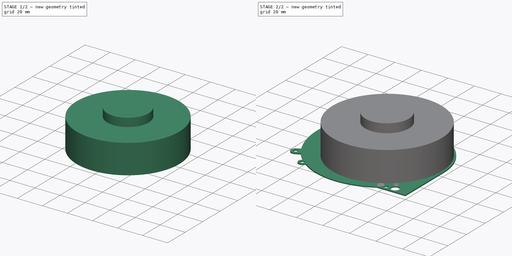
[diagram: build sequence overview — one tinted view per stage of 2, left to right]
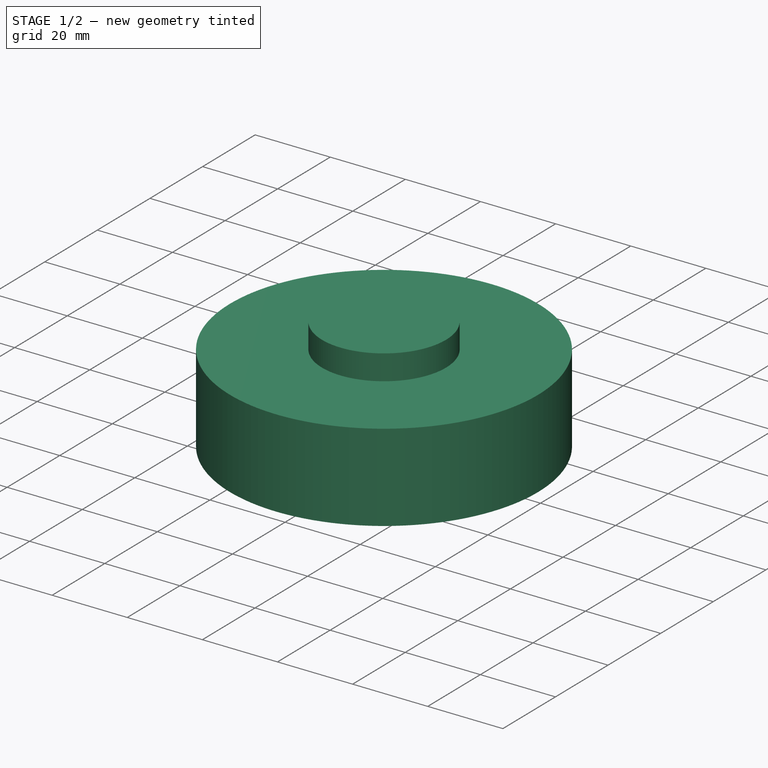
[diagram: stage 1 of 2 — iso view after this stage's code; geometry added in this stage tinted green]
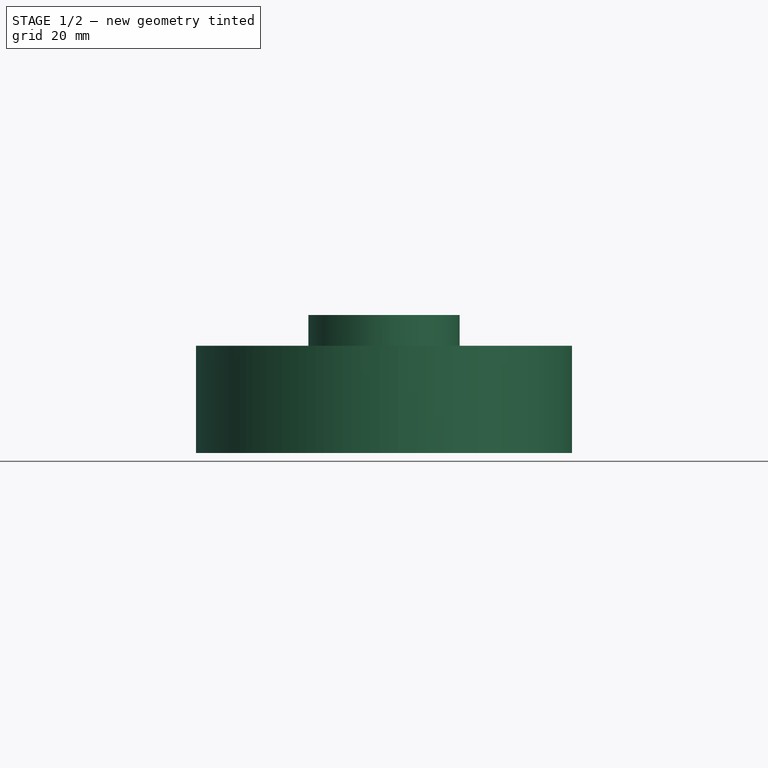
[diagram: stage 1 of 2 — front view after this stage's code; geometry added in this stage tinted green]
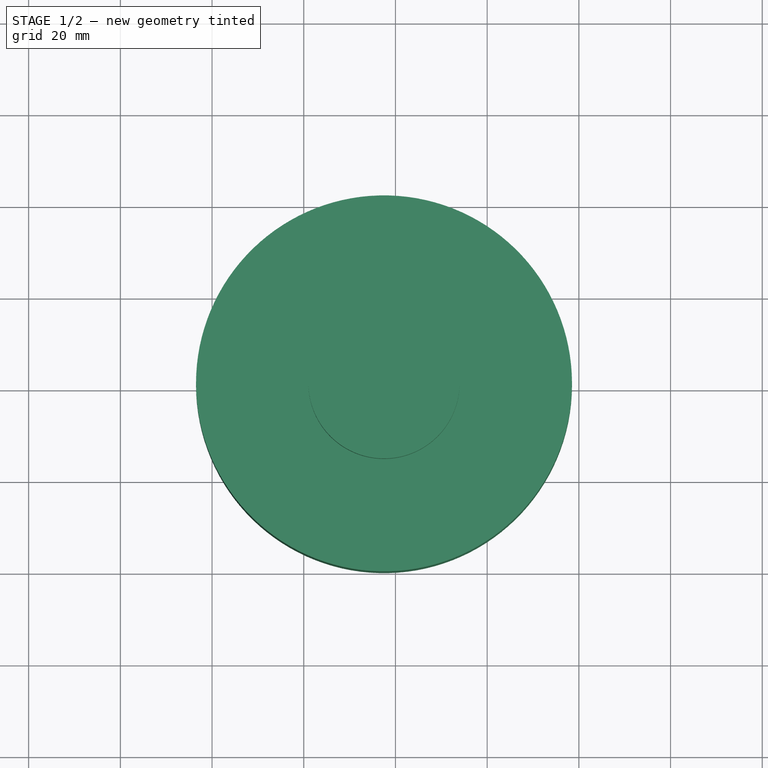
[diagram: stage 1 of 2 — top view after this stage's code; geometry added in this stage tinted green]
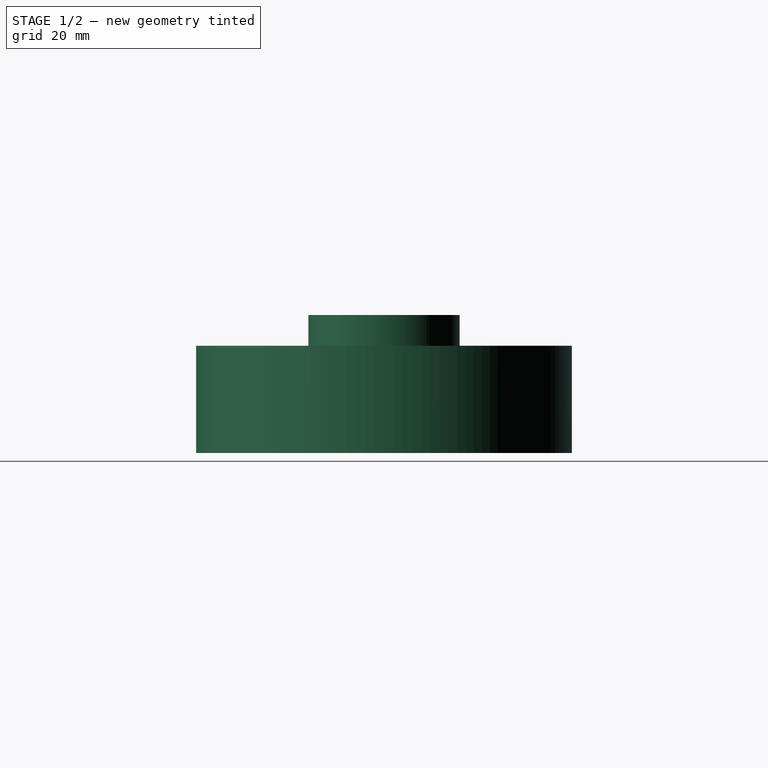
[diagram: stage 1 of 2 — right view after this stage's code; geometry added in this stage tinted green]
FCSTD DOCUMENT  (FreeCAD 0.19R24291 (Git))
Label: ps4_fan_KSB0912HE_DC12V
License: All rights reserved
LicenseURL: http://en.wikipedia.org/wiki/All_rights_reserved
objects: Sketcher::SketchObject×3, PartDesign::Pad×3, PartDesign::Body×2, PartDesign::CoordinateSystem×1
note: 12 computed .brp shape members not serialized (recipe doc carries the construction recipe); baked Part::Feature solids carry a one-line shape summary decoded from their .brp

FEATURE [PartDesign::Body] Body  label="Mounting_Plate"
  Group = -> [Sketch,LCS_1,Pad]
  Origin = -> Origin
  Tip = -> Pad
FEATURE [Sketcher::SketchObject] Sketch001
  FullyConstrained = true
  MapMode = 5
  Support = -> [XY_Plane001]
  sketch-geometry (5):
    g0: Circle CenterX=-42.5 CenterY=41.2 CenterZ=0 NormalX=0 NormalY=0 NormalZ=1 AngleXU=0 Radius=41
    g1: LineSegment StartX=0 StartY=0 StartZ=0 EndX=-42.5 EndY=0 EndZ=0
    g2: LineSegment StartX=-42.5 StartY=0 StartZ=0 EndX=-42.5 EndY=41.2 EndZ=0
    g3: LineSegment StartX=-42.5 StartY=41.2 StartZ=0 EndX=0 EndY=41.2 EndZ=0
    g4: LineSegment StartX=0 StartY=41.2 StartZ=0 EndX=0 EndY=0 EndZ=0
  constraints (13):
    c: Radius(g0) = 41
    c: Coincident(g1,g2)
    c: Coincident(g2,g3)
    c: Coincident(g3,g4)
    c: Coincident(g4,g1)
    c: Horizontal(g1)
    c: Horizontal(g3)
    c: Vertical(g2)
    c: Vertical(g4)
    c: Coincident(g1,g-1)
    c: Coincident(g2,g0)
    c: Distance(g3) = 42.5
    c: Distance(g2) = 41.2
FEATURE [PartDesign::Pad] Pad001
  Direction = (1,1,1)
  Length = 23.4
  Length2 = 100
  Profile = -> Sketch001
  Type = 0
FEATURE [Sketcher::SketchObject] Sketch002
  FullyConstrained = true
  MapMode = 5
  Placement = pos=(0,0,23.4) rot=(0,0,1;0rad)
  Support = -> [Pad001]
  sketch-geometry (5):
    g0: LineSegment StartX=0 StartY=0 StartZ=0 EndX=-42.5 EndY=0 EndZ=0
    g1: LineSegment StartX=-42.5 StartY=0 StartZ=0 EndX=-42.5 EndY=41.2 EndZ=0
    g2: LineSegment StartX=-42.5 StartY=41.2 StartZ=0 EndX=0 EndY=41.2 EndZ=0
    g3: LineSegment StartX=0 StartY=41.2 StartZ=0 EndX=0 EndY=0 EndZ=0
    g4: Circle CenterX=-42.5 CenterY=41.2 CenterZ=0 NormalX=0 NormalY=0 NormalZ=1 AngleXU=0 Radius=16.5
  constraints (13):
    c: Coincident(g0,g1)
    c: Coincident(g1,g2)
    c: Coincident(g2,g3)
    c: Coincident(g3,g0)
    c: Horizontal(g0)
    c: Horizontal(g2)
    c: Vertical(g1)
    c: Vertical(g3)
    c: Coincident(g0,g-1)
    c: Distance(g1) = 41.2
    c: Coincident(g4,g1)
    c: Distance(g2) = 42.5
    c: Radius(g4) = 16.5
FEATURE [PartDesign::Pad] Pad002
  BaseFeature = -> Pad001
  Direction = (1,1,1)
  Length = 6.7
  Length2 = 100
  Profile = -> Sketch002
  Type = 0
FEATURE [PartDesign::Body] Body001  label="Fan"
  Group = -> [Sketch001,Pad001,Sketch002,Pad002]
  Origin = -> Origin001
  Placement = pos=(0,0,0.8) rot=(0,0,1;0rad)
  Tip = -> Pad002
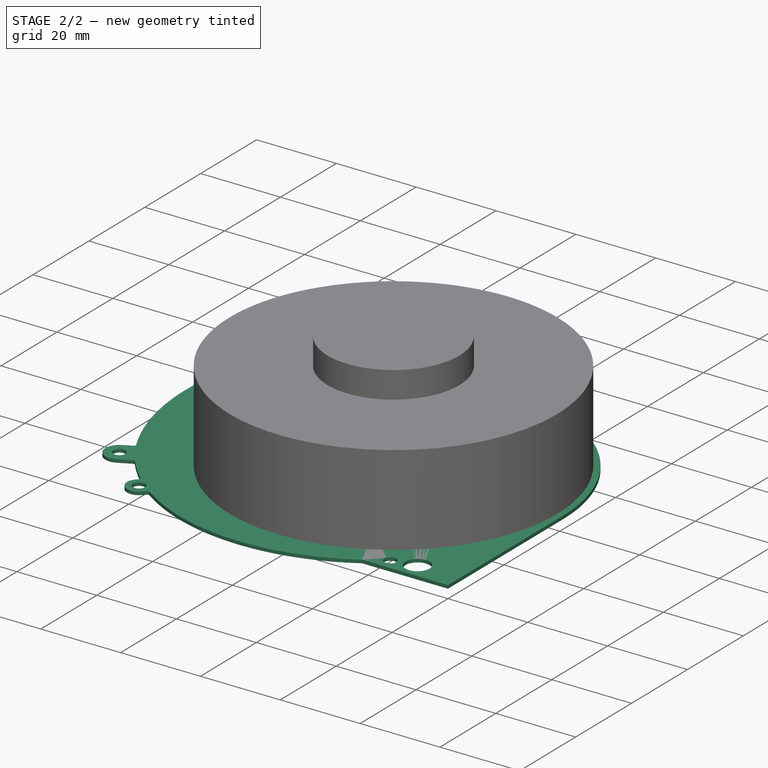
[diagram: stage 2 of 2 — iso view after this stage's code; geometry added in this stage tinted green]
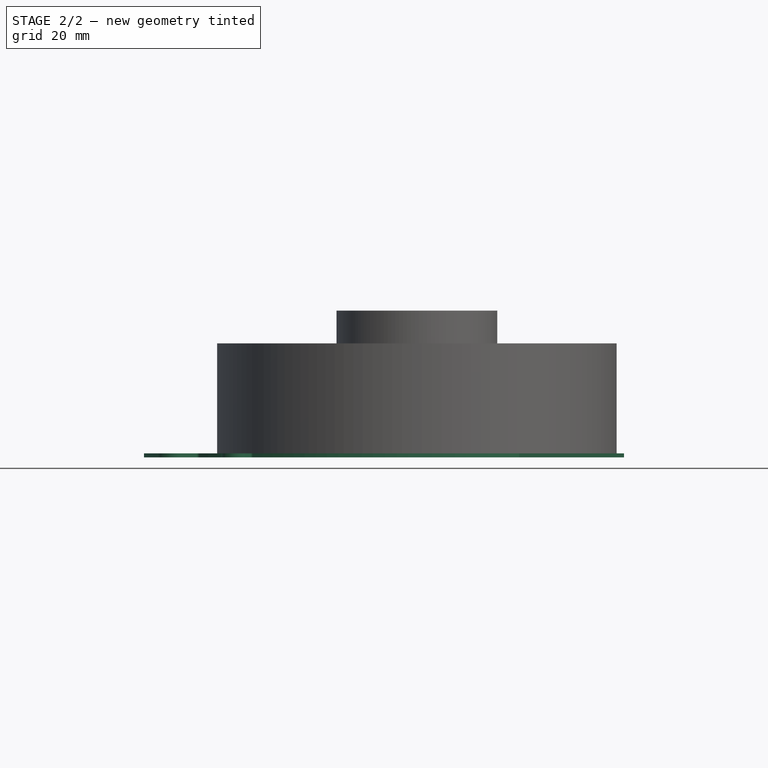
[diagram: stage 2 of 2 — front view after this stage's code; geometry added in this stage tinted green]
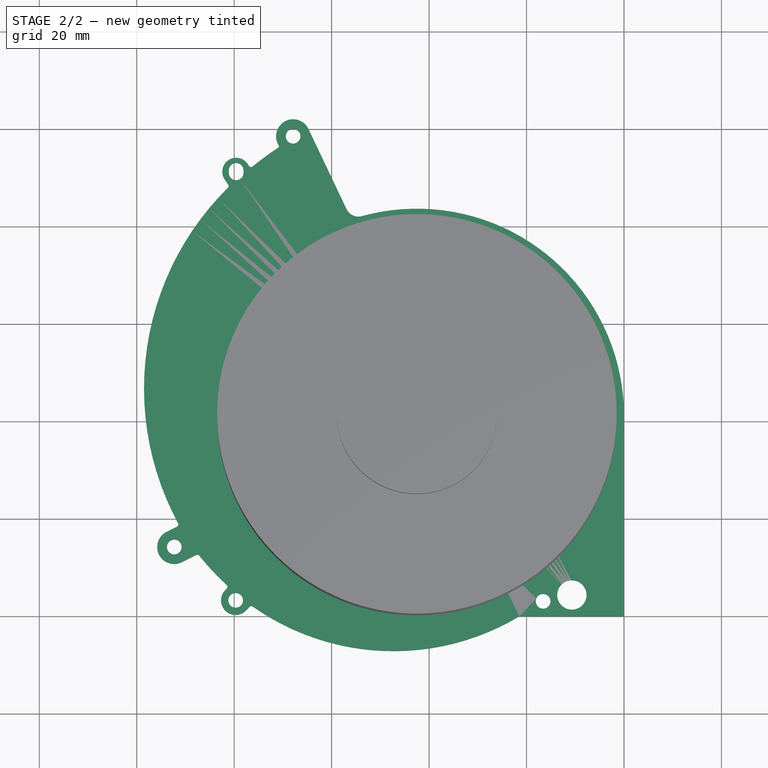
[diagram: stage 2 of 2 — top view after this stage's code; geometry added in this stage tinted green]
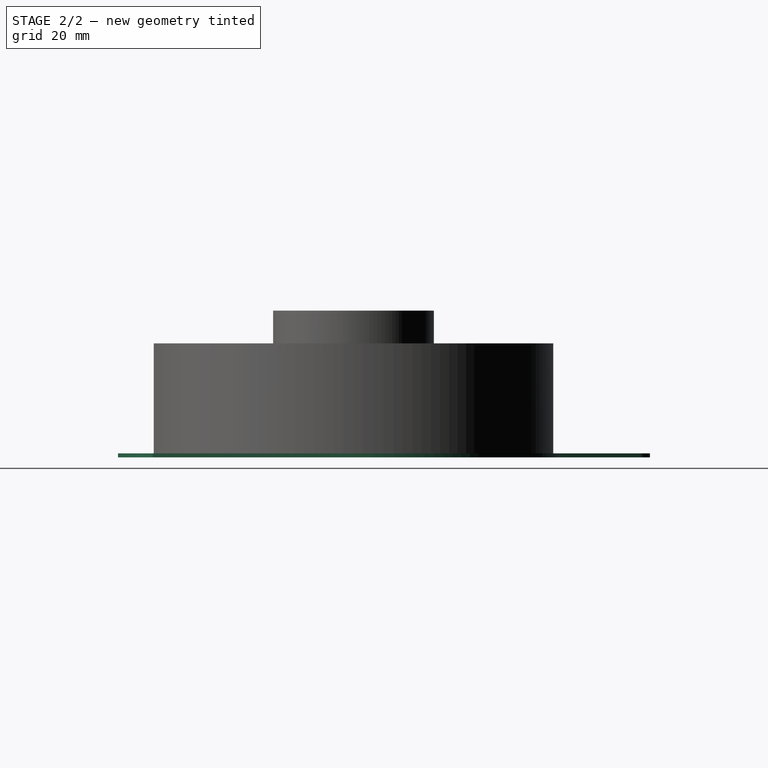
[diagram: stage 2 of 2 — right view after this stage's code; geometry added in this stage tinted green]
FEATURE [Sketcher::SketchObject] Sketch
  FullyConstrained = true
  MapMode = 5
  Support = -> [XY_Plane]
  sketch-geometry (124):
    g0: LineSegment StartX=-21.5 StartY=-7.1e-15 StartZ=0 EndX=0 EndY=-7.1e-15 EndZ=0
    g1: LineSegment StartX=0 StartY=-7.1e-15 StartZ=0 EndX=0 EndY=41.2 EndZ=0
    g2: GeomPoint X=-42.5 Y=41.2 Z=0
    g3: LineSegment StartX=0 StartY=-7.1e-15 StartZ=0 EndX=-42.5 EndY=-7.1e-15 EndZ=0
    g4: LineSegment StartX=-42.5 StartY=-7.1e-15 StartZ=0 EndX=-42.5 EndY=41.2 EndZ=0
    g5: LineSegment StartX=-42.5 StartY=41.2 StartZ=0 EndX=0 EndY=41.2 EndZ=0
    g6: LineSegment StartX=0 StartY=41.2 StartZ=0 EndX=0 EndY=-7.1e-15 EndZ=0
    g7: ArcOfCircle CenterX=-42.5 CenterY=41.2 CenterZ=0 NormalX=0 NormalY=0 NormalZ=1 AngleXU=0 Radius=42.5 StartAngle=0 EndAngle=1.83958
    g8: ArcOfCircle CenterX=-54.5031 CenterY=84.7771 CenterZ=0 NormalX=0 NormalY=0 NormalZ=1 AngleXU=0 Radius=2.7 StartAngle=3.58491 EndAngle=4.98117
    g9: LineSegment StartX=-56.9421 StartY=83.619 StartZ=0 EndX=-64.7488 EndY=100.06 EndZ=0
    g10: Circle CenterX=-67.9104 CenterY=98.5584 CenterZ=0 NormalX=0 NormalY=0 NormalZ=1 AngleXU=0 Radius=1.5
    g11: ArcOfCircle CenterX=-67.9104 CenterY=98.5584 CenterZ=0 NormalX=0 NormalY=0 NormalZ=1 AngleXU=0 Radius=3.5 StartAngle=0.443314 EndAngle=3.58491
    g12: ArcOfCircle CenterX=-71.1286 CenterY=96.4768 CenterZ=0 NormalX=0 NormalY=0 NormalZ=1 AngleXU=0 Radius=0.3 StartAngle=5.1557 EndAngle=6.7265
    g13: ArcOfCircle CenterX=-76.5566 CenterY=92.6894 CenterZ=0 NormalX=0 NormalY=0 NormalZ=1 AngleXU=0 Radius=0.45 StartAngle=3.735 EndAngle=5.3058
    g14: LineSegment StartX=-76.9297 StartY=92.4377 StartZ=0 EndX=-77.2372 EndY=92.8937 EndZ=0
    g15: ArcOfCircle CenterX=-79.6 CenterY=91.55 CenterZ=0 NormalX=0 NormalY=0 NormalZ=1 AngleXU=0 Radius=1.5 StartAngle=1.4e-15 EndAngle=3.14159
    g16: ArcOfCircle CenterX=-79.6 CenterY=91.05 CenterZ=0 NormalX=0 NormalY=0 NormalZ=1 AngleXU=0 Radius=1.5 StartAngle=3.14159 EndAngle=6.28319
    g17: LineSegment StartX=-78.1 StartY=91.05 StartZ=0 EndX=-78.1 EndY=91.55 EndZ=0
    g18: LineSegment StartX=-81.1 StartY=91.05 StartZ=0 EndX=-81.1 EndY=91.55 EndZ=0
    g19: LineSegment StartX=-79.6 StartY=91.05 StartZ=0 EndX=-79.6 EndY=91.3 EndZ=0
    g20: LineSegment StartX=-79.6 StartY=91.3 StartZ=0 EndX=-79.6 EndY=91.55 EndZ=0
    g21: ArcOfCircle CenterX=-79.6 CenterY=91.3 CenterZ=0 NormalX=0 NormalY=0 NormalZ=1 AngleXU=0 Radius=2.85 StartAngle=0.593412 EndAngle=3.735
    g22: LineSegment StartX=-81.9628 StartY=89.7063 StartZ=0 EndX=-81.2078 EndY=88.5871 EndZ=0
    g23: ArcOfCircle CenterX=-81.5809 CenterY=88.3355 CenterZ=0 NormalX=0 NormalY=0 NormalZ=1 AngleXU=0 Radius=0.45 StartAngle=5.3058 EndAngle=6.8766
    g24: LineSegment StartX=-81.5809 StartY=88.3355 StartZ=0 EndX=-81.2078 EndY=88.5871 EndZ=0
    g25: LineSegment StartX=-81.5809 StartY=88.3355 StartZ=0 EndX=-81.3293 EndY=87.9624 EndZ=0
    g26: LineSegment StartX=-76.5566 StartY=92.6894 StartZ=0 EndX=-76.9297 EndY=92.4377 EndZ=0
    g27: LineSegment StartX=-76.5566 StartY=92.6894 StartZ=0 EndX=-76.305 EndY=92.3163 EndZ=0
    g28: LineSegment StartX=-81.1 StartY=91.55 StartZ=0 EndX=-79.6 EndY=91.55 EndZ=0
    g29: LineSegment StartX=-79.6 StartY=91.55 StartZ=0 EndX=-78.1 EndY=91.55 EndZ=0
    g30: LineSegment StartX=-81.1 StartY=91.05 StartZ=0 EndX=-79.6 EndY=91.05 EndZ=0
    g31: LineSegment StartX=-79.6 StartY=91.05 StartZ=0 EndX=-78.1 EndY=91.05 EndZ=0
    g32: LineSegment StartX=-81.9628 StartY=89.7063 StartZ=0 EndX=-79.6 EndY=91.3 EndZ=0
    g33: LineSegment StartX=-79.6 StartY=91.3 StartZ=0 EndX=-77.2372 EndY=92.8937 EndZ=0
    g34: LineSegment StartX=-71 StartY=96.2058 StartZ=0 EndX=-71.1286 EndY=96.4768 EndZ=0
    g35: LineSegment StartX=-71.1286 StartY=96.4768 StartZ=0 EndX=-70.8576 EndY=96.6055 EndZ=0
    g36: LineSegment StartX=-71.0721 StartY=97.0571 StartZ=0 EndX=-67.9104 EndY=98.5584 EndZ=0
    g37: LineSegment StartX=-67.9104 StartY=98.5584 StartZ=0 EndX=-64.7488 EndY=100.06 EndZ=0
    g38: LineSegment StartX=-70.8576 StartY=96.6055 StartZ=0 EndX=-71.0721 EndY=97.0571 EndZ=0
    g39: LineSegment StartX=-56.9421 StartY=83.619 StartZ=0 EndX=-54.5031 EndY=84.7771 EndZ=0
    g40: LineSegment StartX=-54.5031 StartY=84.7771 StartZ=0 EndX=-53.7861 EndY=82.1741 EndZ=0
    g41: LineSegment StartX=0 StartY=-7.1e-15 StartZ=0 EndX=-79.6 EndY=-7.1e-15 EndZ=0
    g42: LineSegment StartX=-79.6 StartY=-7.1e-15 StartZ=0 EndX=-79.6 EndY=91.3 EndZ=0
    g43: LineSegment StartX=-79.6 StartY=91.3 StartZ=0 EndX=0 EndY=91.3 EndZ=0
    g44: LineSegment StartX=0 StartY=91.3 StartZ=0 EndX=0 EndY=-1.42e-14 EndZ=0
    g45: ArcOfCircle CenterX=-32 CenterY=37.4498 CenterZ=0 NormalX=0 NormalY=0 NormalZ=1 AngleXU=0 Radius=70.5214 StartAngle=2.15678 EndAngle=2.2501
    g46: LineSegment StartX=-32 StartY=0 StartZ=0 EndX=-32 EndY=37.4498 EndZ=0
    g47: LineSegment StartX=-32 StartY=37.4498 StartZ=0 EndX=0 EndY=37.4498 EndZ=0
    g48: LineSegment StartX=0 StartY=37.4498 StartZ=0 EndX=0 EndY=-7.1e-15 EndZ=0
    g49: ArcOfCircle CenterX=-91.9532 CenterY=18.9019 CenterZ=0 NormalX=0 NormalY=0 NormalZ=1 AngleXU=0 Radius=0.5 StartAngle=5.17839 EndAngle=6.74919
    g50: ArcOfCircle CenterX=-87.5546 CenterY=12.1593 CenterZ=0 NormalX=0 NormalY=0 NormalZ=1 AngleXU=0 Radius=0.5 StartAngle=0.466003 EndAngle=2.0368
    g51: Circle CenterX=-92.3 CenterY=14.25 CenterZ=0 NormalX=0 NormalY=0 NormalZ=1 AngleXU=0 Radius=1.5
    g52: ArcOfCircle CenterX=-92.3 CenterY=14.25 CenterZ=0 NormalX=0 NormalY=0 NormalZ=1 AngleXU=0 Radius=3.5 StartAngle=2.0368 EndAngle=5.17839
    g53: LineSegment StartX=-90.7274 StartY=11.1232 StartZ=0 EndX=-92.3 EndY=14.25 EndZ=0
    g54: LineSegment StartX=-92.3 StartY=14.25 StartZ=0 EndX=-93.8726 EndY=17.3768 EndZ=0
    g55: LineSegment StartX=-90.7274 StartY=11.1232 StartZ=0 EndX=-87.7793 EndY=12.606 EndZ=0
    g56: LineSegment StartX=-93.8726 StartY=17.3768 StartZ=0 EndX=-91.7285 EndY=18.4552 EndZ=0
    g57: LineSegment StartX=-91.9532 StartY=18.9019 StartZ=0 EndX=-91.7285 EndY=18.4552 EndZ=0
    g58: LineSegment StartX=-87.5546 StartY=12.1593 StartZ=0 EndX=-87.7793 EndY=12.606 EndZ=0
    g59: LineSegment StartX=0 StartY=-7.1e-15 StartZ=0 EndX=-92.3 EndY=-7.1e-15 EndZ=0
    g60: LineSegment StartX=-92.3 StartY=-7.1e-15 StartZ=0 EndX=-92.3 EndY=14.25 EndZ=0
    g61: LineSegment StartX=-92.3 StartY=14.25 StartZ=0 EndX=0 EndY=14.25 EndZ=0
    g62: LineSegment StartX=0 StartY=14.25 StartZ=0 EndX=0 EndY=-7.1e-15 EndZ=0
    g63: ArcOfCircle CenterX=-40.5 CenterY=46.7556 CenterZ=0 NormalX=0 NormalY=0 NormalZ=1 AngleXU=0 Radius=58.0089 StartAngle=2.35159 EndAngle=3.63802
    g64: LineSegment StartX=0 StartY=-7.1e-15 StartZ=0 EndX=-40.5 EndY=-7.1e-15 EndZ=0
    g65: LineSegment StartX=-40.5 StartY=-7.1e-15 StartZ=0 EndX=-40.5 EndY=46.7556 EndZ=0
    g66: LineSegment StartX=-40.5 StartY=46.7556 StartZ=0 EndX=0 EndY=46.7556 EndZ=0
    g67: LineSegment StartX=0 StartY=46.7556 StartZ=0 EndX=0 EndY=-7.1e-15 EndZ=0
    g68: Circle CenterX=-79.7 CenterY=3.3 CenterZ=0 NormalX=0 NormalY=0 NormalZ=1 AngleXU=0 Radius=1.5
    g69: LineSegment StartX=0 StartY=-7.1e-15 StartZ=0 EndX=-79.7 EndY=-7.1e-15 EndZ=0
    g70: LineSegment StartX=-79.7 StartY=-7.1e-15 StartZ=0 EndX=-79.7 EndY=3.3 EndZ=0
    g71: LineSegment StartX=-79.7 StartY=3.3 StartZ=0 EndX=0 EndY=3.3 EndZ=0
    g72: LineSegment StartX=0 StartY=3.3 StartZ=0 EndX=0 EndY=-7.1e-15 EndZ=0
    g73: ArcOfCircle CenterX=-76.4728 CenterY=1.61613 CenterZ=0 NormalX=0 NormalY=0 NormalZ=1 AngleXU=0 Radius=0.5 StartAngle=0.811578 EndAngle=2.38237
    g74: LineSegment StartX=-76.8355 StartY=1.96031 StartZ=0 EndX=-77.5239 EndY=1.23494 EndZ=0
    g75: LineSegment StartX=-76.4728 StartY=1.61613 StartZ=0 EndX=-76.8355 EndY=1.96031 EndZ=0
    g76: ArcOfCircle CenterX=-79.7 CenterY=3.3 CenterZ=0 NormalX=0 NormalY=0 NormalZ=1 AngleXU=0 Radius=3 StartAngle=2.38237 EndAngle=5.52397
    g77: LineSegment StartX=-77.5239 StartY=1.23494 StartZ=0 EndX=-79.7 EndY=3.3 EndZ=0
    g78: LineSegment StartX=-79.7 StartY=3.3 StartZ=0 EndX=-81.8761 EndY=5.36506 EndZ=0
    g79: LineSegment StartX=-81.8761 StartY=5.36506 StartZ=0 EndX=-81.5319 EndY=5.72775 EndZ=0
    g80: ArcOfCircle CenterX=-81.8946 CenterY=6.07193 CenterZ=0 NormalX=0 NormalY=0 NormalZ=1 AngleXU=0 Radius=0.5 StartAngle=5.52397 EndAngle=7.09476
    g81: LineSegment StartX=-81.5319 StartY=5.72775 StartZ=0 EndX=-81.8946 EndY=6.07193 EndZ=0
    g82: ArcOfCircle CenterX=-42.5 CenterY=48.4834 CenterZ=0 NormalX=0 NormalY=0 NormalZ=1 AngleXU=0 Radius=57.385 StartAngle=3.82195 EndAngle=3.96394
    g83: LineSegment StartX=0 StartY=-7.1e-15 StartZ=0 EndX=-42.5 EndY=-7.1e-15 EndZ=0
    g84: LineSegment StartX=-42.5 StartY=-7.1e-15 StartZ=0 EndX=-42.5 EndY=48.4834 EndZ=0
    g85: LineSegment StartX=-42.5 StartY=48.4834 StartZ=0 EndX=0 EndY=48.4834 EndZ=0
    g86: LineSegment StartX=0 StartY=48.4834 StartZ=0 EndX=0 EndY=-7.1e-15 EndZ=0
    g87: ArcOfCircle CenterX=-47.2926 CenterY=43 CenterZ=0 NormalX=0 NormalY=0 NormalZ=1 AngleXU=0 Radius=50.1424 StartAngle=4.09968 EndAngle=5.25268
    g88: LineSegment StartX=-47.2926 StartY=43 StartZ=0 EndX=0 EndY=43 EndZ=0
    g89: LineSegment StartX=0 StartY=43 StartZ=0 EndX=0 EndY=-7.1e-15 EndZ=0
    g90: LineSegment StartX=0 StartY=-7.1e-15 StartZ=0 EndX=-47.2926 EndY=-7.1e-15 EndZ=0
    g91: LineSegment StartX=-47.2926 StartY=-7.1e-15 StartZ=0 EndX=-47.2926 EndY=43 EndZ=0
    g92: ArcOfCircle CenterX=-42.5 CenterY=41.2 CenterZ=0 NormalX=0 NormalY=0 NormalZ=1 AngleXU=0 Radius=18 StartAngle=2.18065 EndAngle=3.45997
    g93: ArcOfCircle CenterX=-42.5 CenterY=41.2 CenterZ=0 NormalX=0 NormalY=0 NormalZ=1 AngleXU=0 Radius=31.3 StartAngle=2.10633 EndAngle=3.5375
    g94: ArcOfCircle CenterX=-42.5 CenterY=41.2 CenterZ=0 NormalX=0 NormalY=0 NormalZ=1 AngleXU=0 Radius=18 StartAngle=3.82307 EndAngle=4.85242
    g95: ArcOfCircle CenterX=-42.5 CenterY=41.2 CenterZ=0 NormalX=0 NormalY=0 NormalZ=1 AngleXU=0 Radius=31.3 StartAngle=3.74554 EndAngle=4.79274
    g96: ArcOfCircle CenterX=-42.5 CenterY=41.2 CenterZ=0 NormalX=0 NormalY=0 NormalZ=1 AngleXU=0 Radius=31.3 StartAngle=4.88863 EndAngle=5.19406
    g97: ArcOfCircle CenterX=-42.5 CenterY=41.2 CenterZ=0 NormalX=0 NormalY=0 NormalZ=1 AngleXU=0 Radius=18 StartAngle=5.02219 EndAngle=5.13215
    g98: ArcOfCircle CenterX=-42.5 CenterY=41.2 CenterZ=0 NormalX=0 NormalY=0 NormalZ=1 AngleXU=0 Radius=18 StartAngle=5.49542 EndAngle=8.06233
    g99: ArcOfCircle CenterX=-42.5 CenterY=41.2 CenterZ=0 NormalX=0 NormalY=0 NormalZ=1 AngleXU=0 Radius=31.3 StartAngle=5.4021 EndAngle=8.15972
    g100: Circle CenterX=-42.5 CenterY=41.2 CenterZ=0 NormalX=0 NormalY=0 NormalZ=1 AngleXU=0 Radius=31.3
    g101: LineSegment StartX=-59.5954 StartY=35.5655 StartZ=0 EndX=-71.3788 EndY=29.1293 EndZ=0
    g102: LineSegment StartX=-68.263 StartY=23.4247 StartZ=0 EndX=-56.4795 EndY=29.861 EndZ=0
    g103: Circle CenterX=-42.5 CenterY=41.2 CenterZ=0 NormalX=0 NormalY=0 NormalZ=1 AngleXU=0 Radius=18
    g104: LineSegment StartX=-39.9877 StartY=23.3762 StartZ=0 EndX=-39.9877 EndY=10.001 EndZ=0
    g105: LineSegment StartX=-37.0123 StartY=10.3848 StartZ=0 EndX=-37.0123 EndY=24.0569 EndZ=0
    g106: LineSegment StartX=-35.1643 StartY=24.7626 StartZ=0 EndX=-28 EndY=13.4612 EndZ=0
    g107: LineSegment StartX=-22.5834 StartY=17.0543 StartZ=0 EndX=-29.8023 EndY=28.4419 EndZ=0
    g108: LineSegment StartX=-58.4724 StartY=68.1179 StartZ=0 EndX=-52.8094 EndY=55.9552 EndZ=0
    g109: LineSegment StartX=-46.2232 StartY=58.8107 StartZ=0 EndX=-51.9212 EndY=71.0485 EndZ=0
    g110: LineSegment StartX=0 StartY=-7.1e-15 StartZ=0 EndX=-28 EndY=-7.1e-15 EndZ=0
    g111: LineSegment StartX=-28 StartY=-7.1e-15 StartZ=0 EndX=-28 EndY=13.4612 EndZ=0
    g112: LineSegment StartX=-28 StartY=13.4612 StartZ=0 EndX=0 EndY=13.4612 EndZ=0
    g113: LineSegment StartX=0 StartY=13.4612 StartZ=0 EndX=0 EndY=-7.1e-15 EndZ=0
    g114: Circle CenterX=-10.7 CenterY=4.4 CenterZ=0 NormalX=0 NormalY=0 NormalZ=1 AngleXU=0 Radius=3
    g115: Circle CenterX=-16.6 CenterY=3.1 CenterZ=0 NormalX=0 NormalY=0 NormalZ=1 AngleXU=0 Radius=1.5
    g116: LineSegment StartX=0 StartY=-7.1e-15 StartZ=0 EndX=-10.7 EndY=-7.1e-15 EndZ=0
    g117: LineSegment StartX=-10.7 StartY=-7.1e-15 StartZ=0 EndX=-10.7 EndY=4.4 EndZ=0
    g118: LineSegment StartX=-10.7 StartY=4.4 StartZ=0 EndX=0 EndY=4.4 EndZ=0
    g119: LineSegment StartX=0 StartY=4.4 StartZ=0 EndX=0 EndY=-7.1e-15 EndZ=0
    g120: LineSegment StartX=0 StartY=-7.1e-15 StartZ=0 EndX=-16.6 EndY=-7.1e-15 EndZ=0
    g121: LineSegment StartX=-16.6 StartY=-7.1e-15 StartZ=0 EndX=-16.6 EndY=3.1 EndZ=0
    g122: LineSegment StartX=-16.6 StartY=3.1 StartZ=0 EndX=0 EndY=3.1 EndZ=0
    g123: LineSegment StartX=0 StartY=3.1 StartZ=0 EndX=0 EndY=-7.1e-15 EndZ=0
  constraints (335):
    c: Coincident(g0,g1)
    c: Vertical(g1)
    c: Coincident(g0,g-1)
    c: Coincident(g3,g4)
    c: Coincident(g4,g5)
    c: Coincident(g5,g6)
    c: Coincident(g6,g3)
    c: Horizontal(g5)
    c: Vertical(g4)
    c: Coincident(g3,g0)
    c: Coincident(g4,g2)
    c: Coincident(g7,g2)
    c: Coincident(g7,g1)
    c: Coincident(g8,g7)
    c: Coincident(g9,g8)
    c: Coincident(g11,g10)
    c: Coincident(g11,g9)
    c: Coincident(g14,g13)
    c: Coincident(g17,g16)
    c: Coincident(g17,g15)
    c: Coincident(g18,g16)
    c: Coincident(g18,g15)
    c: Parallel(g18,g17)
    c: Coincident(g19,g16)
    c: Coincident(g19,g20)
    c: Coincident(g20,g15)
    c: Equal(g19,g20)
    c: Parallel(g20,g19)
    c: Vertical(g17)
    c: Coincident(g21,g19)
    c: Coincident(g21,g14)
    c: Coincident(g22,g21)
    c: Coincident(g23,g22)
    c: Coincident(g24,g23)
    c: Coincident(g24,g22)
    c: Coincident(g25,g23)
    c: Coincident(g25,g23)
    c: Angle(g25,g24) = 1.5708
    c: Perpendicular(g22,g24)
    c: Radius(g23) = 0.45
    c: Coincident(g26,g13)
    c: Coincident(g26,g13)
    c: Coincident(g27,g13)
    c: Angle(g26,g27) = 1.5708
    c: Radius(g13) = 0.45
    c: Radius(g15) = 1.5
    c: Coincident(g28,g15)
    c: Coincident(g28,g15)
    c: Coincident(g29,g15)
    c: Coincident(g29,g15)
    c: Parallel(g29,g28)
    c: Equal(g18,g17)
    c: Perpendicular(g28,g18)
    c: Coincident(g16,g30)
    c: Coincident(g30,g31)
    c: Coincident(g31,g16)
    c: Parallel(g30,g31)
    c: Coincident(g16,g30)
    c: Radius(g21) = 2.85
    c: Distance(g17) = 0.5
    c: Perpendicular(g26,g14)
    c: Coincident(g32,g21)
    c: Coincident(g32,g33)
    c: Coincident(g33,g14)
    c: Parallel(g33,g32)
    c: Perpendicular(g33,g14)
    c: Perpendicular(g32,g22)
    c: Coincident(g21,g32)
    c: Distance(g14) = 0.55
    c: Distance(g22) = 1.35
    c: Coincident(g34,g12)
    c: Coincident(g34,g12)
    c: Coincident(g35,g12)
    c: Coincident(g36,g10)
    c: Coincident(g37,g10)
    c: Coincident(g37,g9)
    c: Angle(g34,g35) = 1.5708
    c: Parallel(g36,g37)
    c: Perpendicular(g9,g37)
    c: Coincident(g11,g36)
    c: Coincident(g12,g35)
    c: Coincident(g38,g12)
    c: Coincident(g38,g11)
    c: Perpendicular(g36,g38)
    c: Perpendicular(g38,g35)
    c: Radius(g12) = 0.3
    c: Radius(g11) = 3.5
    c: Radius(g10) = 1.5
    c: Coincident(g39,g8)
    c: Coincident(g39,g8)
    c: Coincident(g40,g8)
    c: Coincident(g40,g7)
    c: Perpendicular(g9,g39)
    c: Perpendicular(g7,g40)
    c: Angle(g8) = 1.39626
    c: Horizontal(g0)
    c: Radius(g8) = 2.7
    c: Distance(g38) = 0.5
    c: Coincident(g13,g27)
    c: Coincident(g41,g42)
    c: Coincident(g42,g43)
    c: Coincident(g43,g44)
    c: Coincident(g44,g41)
    c: Horizontal(g41)
    c: Horizontal(g43)
    c: Vertical(g42)
    c: Vertical(g44)
    c: Coincident(g41,g0)
    c: Coincident(g42,g21)
    c: Angle(g32,g19) = 0.977384
    c: Horizontal(g3)
    c: Coincident(g5,g1)
    c: Distance(g43) = 79.6
    c: Distance(g42) = 91.3
    c: Distance(g5) = 42.5
    c: Distance(g4) = 41.2
    c: Angle(g7) = 1.83958
    c: Distance(g9) = 18.2
    c: Coincident(g45,g12)
    c: Coincident(g13,g45)
    c: Coincident(g46,g47)
    c: Coincident(g47,g48)
    c: Horizontal(g47)
    c: Vertical(g46)
    c: Vertical(g48)
    c: Coincident(g46,g45)
    c: Distance(g47) = 32
    c: Distance(g0) = 21.5
    c: Angle(g49) = 1.5708
    c: Angle(g50) = 1.5708
    c: Radius(g51) = 1.5
    c: Coincident(g52,g51)
    c: Angle(g52) = 3.14159
    c: Radius(g52) = 3.5
    c: Coincident(g53,g52)
    c: Coincident(g53,g51)
    c: Coincident(g54,g51)
    c: Coincident(g54,g52)
    c: Coincident(g55,g52)
    c: Coincident(g55,g50)
    c: Coincident(g56,g52)
    c: Coincident(g56,g49)
    c: Perpendicular(g56,g54)
    c: Perpendicular(g53,g55)
    c: Coincident(g57,g49)
    c: Coincident(g57,g49)
    c: Perpendicular(g57,g56)
    c: Radius(g49) = 0.5
    c: Radius(g50) = 0.5
    c: Coincident(g58,g50)
    c: Coincident(g58,g50)
    c: Perpendicular(g55,g58)
    c: Coincident(g59,g60)
    c: Coincident(g60,g61)
    c: Coincident(g61,g62)
    c: Coincident(g62,g59)
    c: Horizontal(g59)
    c: Horizontal(g61)
    c: Vertical(g60)
    c: Vertical(g62)
    c: Coincident(g59,g0)
    c: Coincident(g60,g51)
    c: Distance(g60) = 14.25
    c: Distance(g59) = 92.3
    c: Angle(g60,g53) = 0.466003
    c: Distance(g55) = 3.3
    c: Distance(g56) = 2.4
    c: Coincident(g63,g23)
    c: Coincident(g49,g63)
    c: Coincident(g0,g48)
    c: PointOnObject(g46,g3)
    c: Coincident(g64,g65)
    c: Coincident(g65,g66)
    c: Coincident(g66,g67)
    c: Coincident(g67,g64)
    c: Horizontal(g64)
    c: Horizontal(g66)
    c: Vertical(g65)
    c: Vertical(g67)
    c: Coincident(g64,g0)
    c: Coincident(g65,g63)
    c: Distance(g66) = 40.5
    c: Radius(g68) = 1.5
    c: Coincident(g69,g70)
    c: Coincident(g70,g71)
    c: Coincident(g71,g72)
    c: Coincident(g72,g69)
    c: Horizontal(g69)
    c: Horizontal(g71)
    c: Vertical(g70)
    c: Vertical(g72)
    c: Coincident(g69,g0)
    c: Coincident(g70,g68)
    c: Distance(g70) = 3.3
    c: Distance(g71) = 79.7
    c: Angle(g73) = 1.5708
    c: Radius(g73) = 0.5
    c: Coincident(g74,g73)
    c: Coincident(g75,g73)
    c: Coincident(g75,g73)
    c: Perpendicular(g75,g74)
    c: Coincident(g76,g68)
    c: Coincident(g76,g74)
    c: Radius(g76) = 3
    c: Coincident(g74,g77)
    c: Coincident(g77,g68)
    c: Coincident(g77,g78)
    c: Coincident(g78,g76)
    c: Angle(g76) = 3.14159
    c: Perpendicular(g74,g77)
    c: Distance(g74) = 1
    c: Coincident(g79,g76)
    c: Perpendicular(g79,g78)
    c: Distance(g79) = 0.5
    c: Coincident(g80,g79)
    c: Radius(g80) = 0.5
    c: Coincident(g81,g79)
    c: Coincident(g81,g80)
    c: Angle(g80) = 1.5708
    c: Angle(g70,g77) = 0.811578
    c: Perpendicular(g79,g81)
    c: Coincident(g82,g50)
    c: Coincident(g82,g80)
    c: Coincident(g83,g84)
    c: Coincident(g84,g85)
    c: Coincident(g85,g86)
    c: Coincident(g86,g83)
    c: Horizontal(g83)
    c: Horizontal(g85)
    c: Vertical(g84)
    c: Vertical(g86)
    c: Coincident(g83,g0)
    c: Coincident(g84,g82)
    c: Distance(g85) = 42.5
    c: Coincident(g87,g73)
    c: Coincident(g87,g0)
    c: Coincident(g88,g89)
    c: Coincident(g89,g90)
    c: Coincident(g90,g91)
    c: Coincident(g91,g88)
    c: Horizontal(g88)
    c: Horizontal(g90)
    c: Vertical(g89)
    c: Vertical(g91)
    c: Coincident(g88,g87)
    c: Coincident(g89,g0)
    c: Distance(g91) = 43
    c: Coincident(g92,g7)
    c: Coincident(g93,g7)
    c: Coincident(g94,g7)
    c: Coincident(g95,g7)
    c: Coincident(g96,g7)
    c: Coincident(g97,g7)
    c: Coincident(g98,g7)
    c: Coincident(g99,g7)
    c: Coincident(g100,g7)
    c: PointOnObject(g95,g100)
    c: PointOnObject(g93,g100)
    c: PointOnObject(g99,g100)
    c: PointOnObject(g96,g100)
    c: Radius(g100) = 31.3
    c: Angle(g93) = 1.43117
    c: Angle(g95) = 1.0472
    c: Angle(g96) = 0.305433
    c: Angle(g99) = 2.75762
    c: Coincident(g101,g92)
    c: Coincident(g101,g93)
    c: Coincident(g102,g95)
    c: Coincident(g102,g94)
    c: Parallel(g101,g102)
    c: Coincident(g103,g7)
    c: PointOnObject(g92,g103)
    c: PointOnObject(g98,g103)
    c: PointOnObject(g94,g103)
    c: Radius(g103) = 18
    c: Equal(g101,g102)
    c: Coincident(g104,g94)
    c: Coincident(g104,g95)
    c: Vertical(g104)
    c: Coincident(g105,g96)
    c: Coincident(g105,g97)
    c: Vertical(g105)
    c: Coincident(g106,g97)
    c: Coincident(g106,g96)
    c: Coincident(g107,g99)
    c: Coincident(g107,g98)
    c: Parallel(g106,g107)
    c: Coincident(g108,g93)
    c: Coincident(g108,g92)
    c: Coincident(g109,g98)
    c: Coincident(g109,g99)
    c: Parallel(g108,g109)
    c: PointOnObject(g97,g103)
    c: Distance(g93,g95) = 6.5
    c: Distance(g95,g96) = 3
    c: Distance(g96,g99) = 6.5
    c: Coincident(g110,g111)
    c: Coincident(g111,g112)
    c: Coincident(g112,g113)
    c: Coincident(g113,g110)
    c: Horizontal(g110)
    c: Horizontal(g112)
    c: Vertical(g111)
    c: Vertical(g113)
    c: Coincident(g110,g0)
    c: Coincident(g111,g96)
    c: Distance(g112) = 28
    c: Angle(g92) = 1.27933
    c: Angle(g97) = 0.109956
    c: Radius(g114) = 3
    c: Radius(g115) = 1.5
    c: Coincident(g116,g117)
    c: Coincident(g117,g118)
    c: Coincident(g118,g119)
    c: Coincident(g119,g116)
    c: Horizontal(g116)
    c: Horizontal(g118)
    c: Vertical(g117)
    c: Vertical(g119)
    c: Coincident(g116,g0)
    c: Coincident(g117,g114)
    c: Coincident(g120,g121)
    c: Coincident(g121,g122)
    c: Coincident(g122,g123)
    c: Coincident(g123,g120)
    c: Horizontal(g120)
    c: Horizontal(g122)
    c: Vertical(g121)
    c: Vertical(g123)
    c: Coincident(g120,g0)
    c: Coincident(g121,g115)
    c: DistanceY(g121,g121) = 3.1
    c: DistanceY(g117,g117) = 4.4
    c: DistanceX(g122,g122) = 16.6
    c: DistanceX(g118,g118) = 10.7
FEATURE [PartDesign::CoordinateSystem] LCS_1
  AttacherType = Attacher::AttachEngine3D
FEATURE [PartDesign::Pad] Pad
  Direction = (1,1,1)
  Length = 0.8
  Length2 = 100
  Profile = -> Sketch
  Type = 0
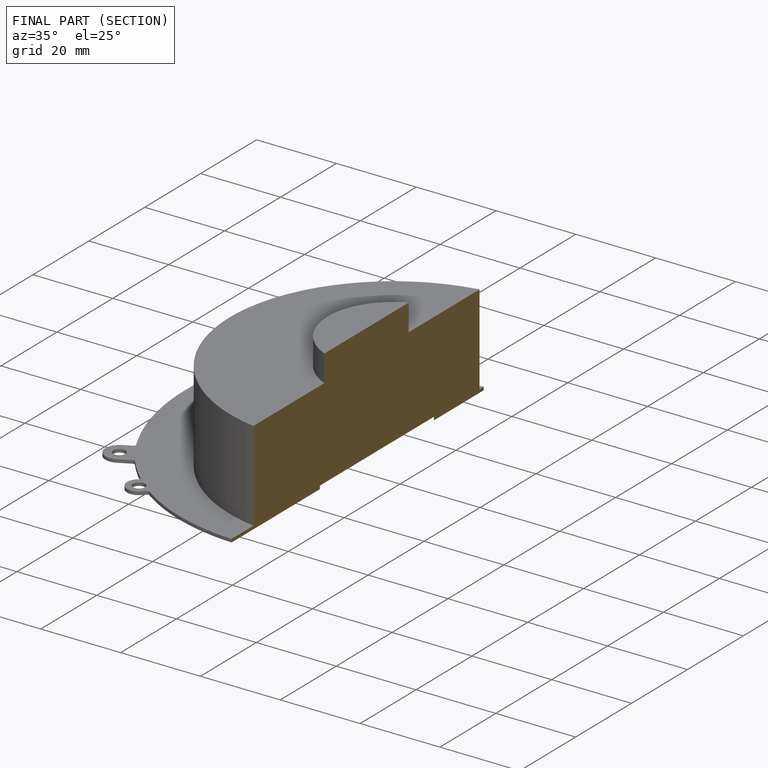
[diagram: finished part — half-section view (interior)]
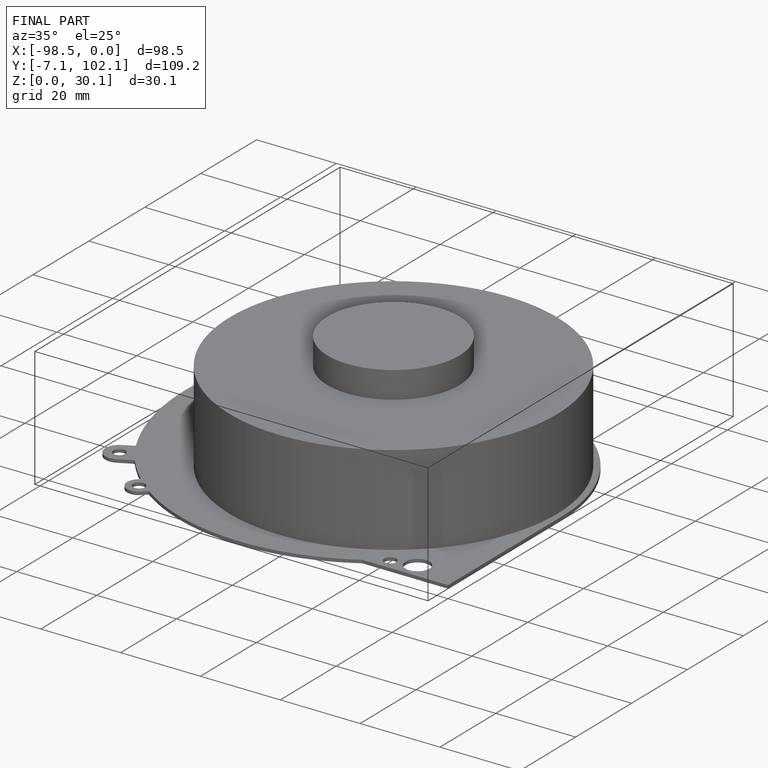
[diagram: finished part — iso view with bounding-box wireframe]
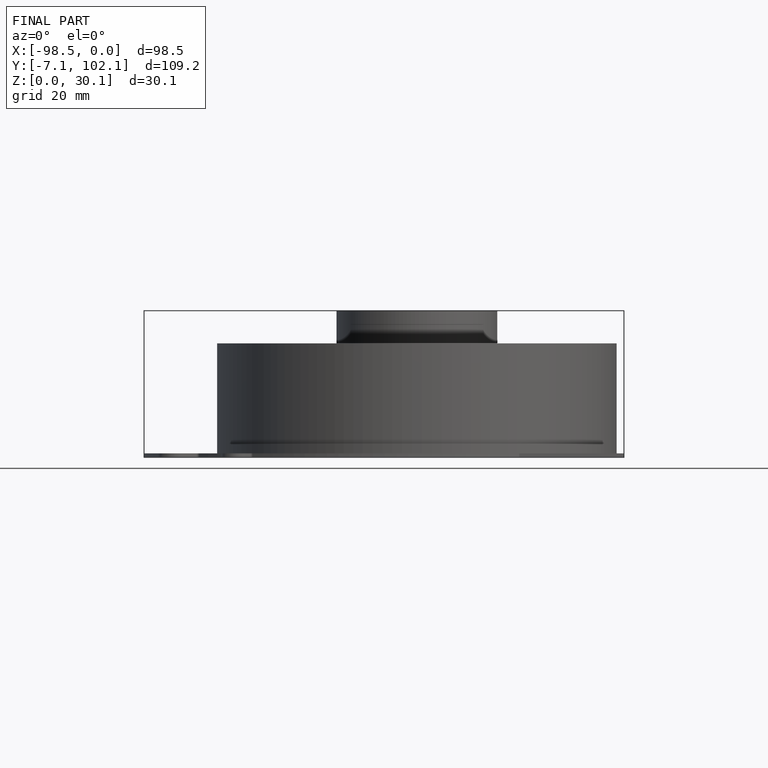
[diagram: finished part — front view with bounding-box wireframe]
